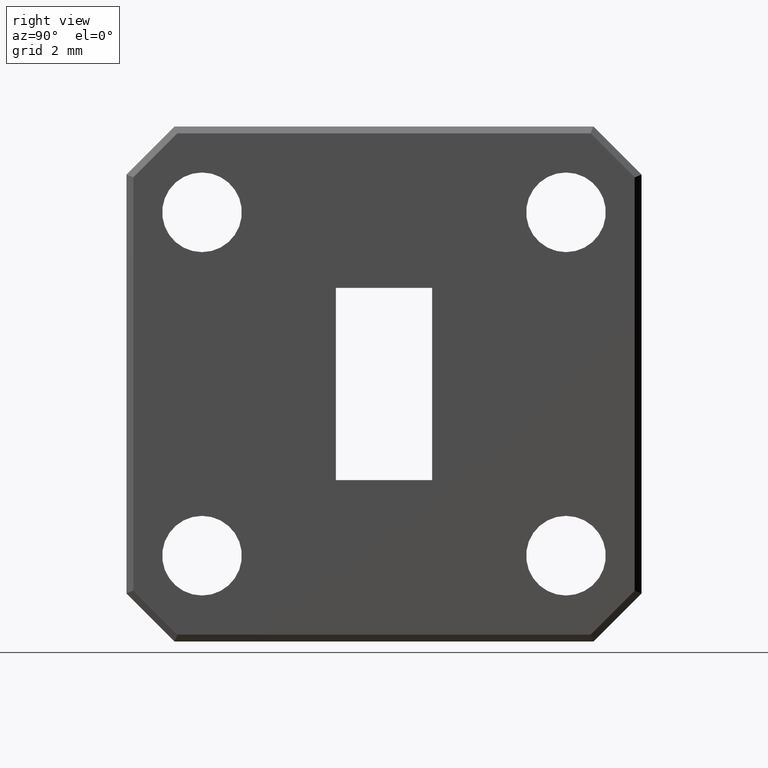
[diagram: clean part render]
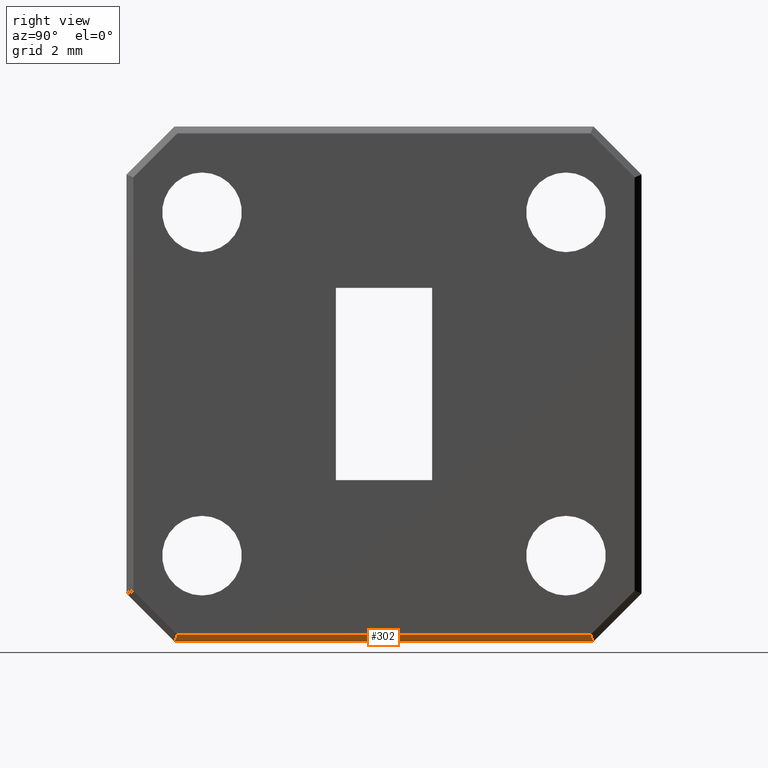
[diagram: same view with one face highlighted and labeled with its STEP entity id]
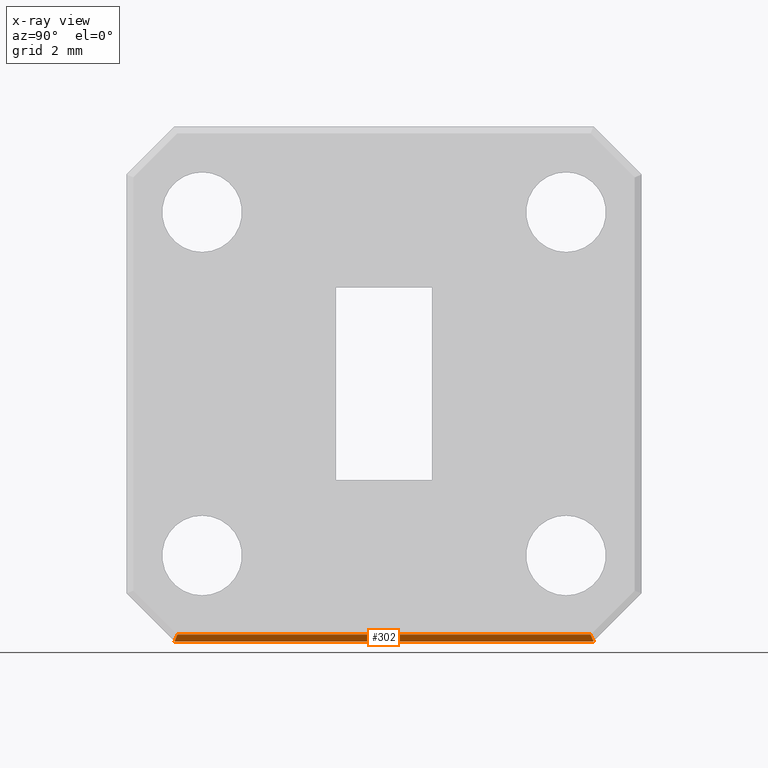
[diagram: x-ray of the same camera — body ghosted, the highlighted face saturated]
A machine part, right view. The second image highlights one B-rep face of the part: STEP entity #302.
The next image is the same camera in x-ray: the body ghosted, the highlighted face saturated — about 0% of this face is hidden behind the body in this view.
In plain terms, the highlighted planar face has unit normal (0.7071, -0, -0.7071).
Its self-contained STEP definition (entity closure, byte-faithful):
#6 = ORIENTED_EDGE ( 'NONE', *, *, #1026, .F. ) ;
#68 = DIRECTION ( 'NONE',  ( 0.000000000000000000, 1.000000000000000000, 0.000000000000000000 ) ) ;
#105 = CARTESIAN_POINT ( 'NONE',  ( 0.1056512392830511182, -0.2972744037338947432, -0.3563487607169489868 ) ) ;
#188 = VECTOR ( 'NONE', #835, 39.37007874015748143 ) ;
#200 = EDGE_LOOP ( 'NONE', ( #725, #890, #981, #6 ) ) ;
#214 = VERTEX_POINT ( 'NONE', #612 ) ;
#253 = EDGE_CURVE ( 'NONE', #214, #1179, #380, .T. ) ;
#278 = LINE ( 'NONE', #105, #844 ) ;
#299 = CARTESIAN_POINT ( 'NONE',  ( 0.1543867030627247283, 0.2770875136678102590, -0.3076132969372753490 ) ) ;
#302 = ADVANCED_FACE ( 'NONE', ( #563 ), #857, .T. ) ;
#304 = VERTEX_POINT ( 'NONE', #770 ) ;
#364 = DIRECTION ( 'NONE',  ( 0.000000000000000000, -1.000000000000000000, 0.000000000000000000 ) ) ;
#380 = LINE ( 'NONE', #897, #812 ) ;
#437 = CARTESIAN_POINT ( 'NONE',  ( 0.09700000000000000289, 0.3049999999999995492, -0.3650000000000000466 ) ) ;
#488 = CARTESIAN_POINT ( 'NONE',  ( 0.08700000000000010503, -0.3050000000000003819, -0.3749999999999999445 ) ) ;
#563 = FACE_OUTER_BOUND ( 'NONE', #200, .T. ) ;
#612 = CARTESIAN_POINT ( 'NONE',  ( 0.08700000000000010503, 0.3049999999999998268, -0.3749999999999999445 ) ) ;
#653 = DIRECTION ( 'NONE',  ( -0.6785983445458464436, -0.2810846377148228381, -0.6785983445458464436 ) ) ;
#666 = LINE ( 'NONE', #299, #188 ) ;
#670 = CARTESIAN_POINT ( 'NONE',  ( 0.09700000000000000289, 0.000000000000000000, -0.3650000000000000466 ) ) ;
#725 = ORIENTED_EDGE ( 'NONE', *, *, #780, .T. ) ;
#759 = VECTOR ( 'NONE', #68, 39.37007874015748143 ) ;
#770 = CARTESIAN_POINT ( 'NONE',  ( 0.09700000000000000289, -0.3008578643762693794, -0.3650000000000000466 ) ) ;
#780 = EDGE_CURVE ( 'NONE', #304, #1179, #278, .T. ) ;
#809 = LINE ( 'NONE', #437, #759 ) ;
#812 = VECTOR ( 'NONE', #364, 39.37007874015748143 ) ;
#835 = DIRECTION ( 'NONE',  ( -0.6785983445458461105, 0.2810846377148250030, -0.6785983445458461105 ) ) ;
#844 = VECTOR ( 'NONE', #653, 39.37007874015748854 ) ;
#857 = PLANE ( 'NONE',  #881 ) ;
#881 = AXIS2_PLACEMENT_3D ( 'NONE', #670, #1027, #1118 ) ;
#890 = ORIENTED_EDGE ( 'NONE', *, *, #253, .F. ) ;
#892 = CARTESIAN_POINT ( 'NONE',  ( 0.09700000000000000289, 0.3008578643762688798, -0.3650000000000000466 ) ) ;
#897 = CARTESIAN_POINT ( 'NONE',  ( 0.08700000000000010503, -0.3050000000000003819, -0.3749999999999999445 ) ) ;
#981 = ORIENTED_EDGE ( 'NONE', *, *, #1152, .F. ) ;
#1026 = EDGE_CURVE ( 'NONE', #304, #1047, #809, .T. ) ;
#1027 = DIRECTION ( 'NONE',  ( 0.7071067811865475727, -0.000000000000000000, -0.7071067811865475727 ) ) ;
#1047 = VERTEX_POINT ( 'NONE', #892 ) ;
#1118 = DIRECTION ( 'NONE',  ( -0.000000000000000000, -1.000000000000000000, 0.000000000000000000 ) ) ;
#1152 = EDGE_CURVE ( 'NONE', #1047, #214, #666, .T. ) ;
#1179 = VERTEX_POINT ( 'NONE', #488 ) ;